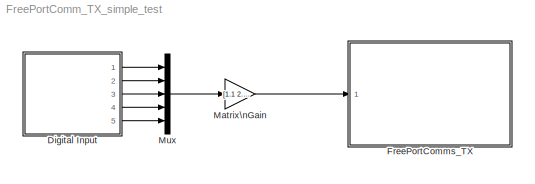
MODEL FreePortComm_TX_simple_test
KIND model
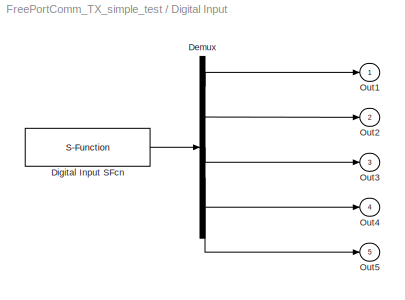
BLOCK [SubSystem] Digital Input
  Ports = [0, 5]
  RequestExecContextInheritance = off
  SID = 1
  ShowPortLabels = none
  Tag = mcTarget_digIn
BLOCK [Demux] Digital Input/Demux
  Outputs = 5
  Ports = [1, 5]
  SID = 1:1
BLOCK [S-Function] Digital Input/Digital Input SFcn
  EnableBusSupport = off
  FunctionName = digIn_sfcn_9S12
  Parameters = sampletime, port, pins
  Ports = [0, 1]
  SFcnIsStateOwnerBlock = off
  SFunctionDeploymentMode = off
  SID = 1:2
  Tag = mcTarget_digIn
BLOCK [Outport] Digital Input/Out1
  IconDisplay = Port number
  SID = 1:3
BLOCK [Outport] Digital Input/Out2
  IconDisplay = Port number
  Port = 2
  SID = 1:4
BLOCK [Outport] Digital Input/Out3
  IconDisplay = Port number
  Port = 3
  SID = 1:5
BLOCK [Outport] Digital Input/Out4
  IconDisplay = Port number
  Port = 4
  SID = 1:6
BLOCK [Outport] Digital Input/Out5
  IconDisplay = Port number
  Port = 5
  SID = 1:7
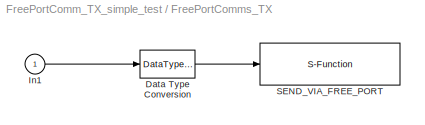
BLOCK [SubSystem] FreePortComms_TX
  Ports = [1]
  RequestExecContextInheritance = off
  SID = 5
  ShowPortLabels = none
  Tag = mcTarget_freePortCommsTX
BLOCK [DataTypeConversion] FreePortComms_TX/Data Type Conversion
  OutDataTypeStr = single
  SID = 5:7
BLOCK [Inport] FreePortComms_TX/In1
  IconDisplay = Port number
  SID = 5:6
BLOCK [S-Function] FreePortComms_TX/SEND_VIA_FREE_PORT
  EnableBusSupport = off
  FunctionName = freePortComms_txd
  Parameters = sampletime, channel, buf_size, data_type, port, baudrate, format
  Ports = [1]
  SFcnIsStateOwnerBlock = off
  SFunctionDeploymentMode = off
  SID = 5:8
  Tag = mcTarget_freePortCommsTX
BLOCK [Gain] Matrix\nGain
  Gain = [1.1 2.2 3.3 4.4 5.5]
  SID = 3
BLOCK [Mux] Mux
  DisplayOption = bar
  Inputs = 5
  Ports = [5, 1]
  SID = 4
LINE Digital Input/Demux:1 -> Digital Input/Out1:1
LINE Digital Input/Demux:2 -> Digital Input/Out2:1
LINE Digital Input/Demux:3 -> Digital Input/Out3:1
LINE Digital Input/Demux:4 -> Digital Input/Out4:1
LINE Digital Input/Demux:5 -> Digital Input/Out5:1
LINE Digital Input/Digital Input SFcn:1 -> Digital Input/Demux:1
LINE Digital Input:1 -> Mux:1
LINE Digital Input:2 -> Mux:2
LINE Digital Input:3 -> Mux:3
LINE Digital Input:4 -> Mux:4
LINE Digital Input:5 -> Mux:5
LINE FreePortComms_TX/Data Type Conversion:1 -> FreePortComms_TX/SEND_VIA_FREE_PORT:1
LINE FreePortComms_TX/In1:1 -> FreePortComms_TX/Data Type Conversion:1
LINE Matrix\nGain:1 -> FreePortComms_TX:1
LINE Mux:1 -> Matrix\nGain:1
